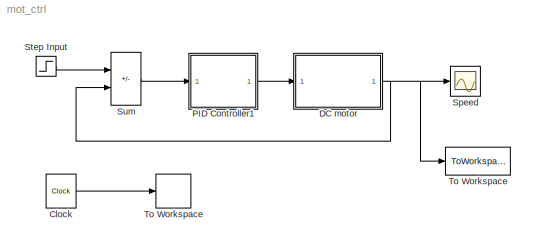
MODEL mot_ctrl
KIND model
CONFIG AbsTol = 1e-3
CONFIG FixedStep = auto
CONFIG MaxStep = 1
CONFIG MinStep = auto
CONFIG RelTol = 1e-3
CONFIG Solver = ode45
CONFIG SolverMode = SingleTasking
CONFIG StartTime = 0.0
CONFIG StopTime = 2
BLOCK [Clock] Clock
  Decimation = 10
  DisplayTime = off
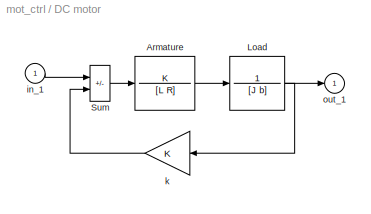
BLOCK [SubSystem] DC motor
  MaskDisplay = disp('DC motor')
  MaskIconFrame = on
  MaskIconOpaque = on
  MaskIconRotate = none
  MaskIconUnits = autoscale
  Ports = [1, 1]
  RTWFcnNameOpts = Auto
  RTWFileNameOpts = Auto
  RTWSystemCode = Auto
  ShowPortLabels = off
  TreatAsAtomicUnit = off
BLOCK [Gain] DC motor/ k 
  Gain = K
  Multiplication = Element-wise(K.*u)
  SaturateOnIntegerOverflow = on
BLOCK [TransferFcn] DC motor/Armature
  AbsoluteTolerance = auto
  Denominator = [L R]
  Numerator = K
  Realization = auto
BLOCK [TransferFcn] DC motor/Load
  AbsoluteTolerance = auto
  Denominator = [J b]
  Numerator = 1
  Realization = auto
BLOCK [Sum] DC motor/Sum
  IconShape = rectangular
  Inputs = +-
  Ports = [2, 1]
  SaturateOnIntegerOverflow = on
BLOCK [Inport] DC motor/in_1
  Interpolate = on
  LatchInput = off
  Port = 1
BLOCK [Outport] DC motor/out_1
  InitialOutput = 0
  OutputWhenDisabled = held
  Port = 1
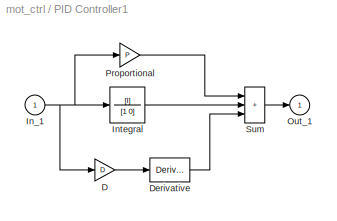
BLOCK [SubSystem] PID Controller1
  MaskCallbackString = ||
  MaskDescription = Enter expressions for proportional, integral, and derivative terms.\nP+I/s+Ds
  MaskDisplay = disp('PID')
  MaskEnableString = on,on,on
  MaskHelp = This block implements a PID controller where parameters are entered for the Proportional, Integral and Derivative terms. Unmask this block to see how it works. The derivative term is implemented using a true derivative block.
  MaskIconFrame = on
  MaskIconOpaque = on
  MaskIconRotate = none
  MaskIconUnits = autoscale
  MaskInitialization = P=@1; I=@2; D=@3;
  MaskPromptString = Proportional:|Integral|Derivative:
  MaskStyleString = edit,edit,edit
  MaskToolTipString = on,on,on
  MaskTunableValueString = on,on,on
  MaskType = PID Controller
  MaskValueString = 100|100|10
  MaskVariableAliases = ,,
  MaskVisibilityString = on,on,on
  Ports = [1, 1]
  RTWFcnNameOpts = Auto
  RTWFileNameOpts = Auto
  RTWSystemCode = Auto
  ShowPortLabels = off
  TreatAsAtomicUnit = off
BLOCK [Gain] PID Controller1/D
  Gain = D
  Multiplication = Element-wise(K.*u)
  SaturateOnIntegerOverflow = on
BLOCK [Derivative] PID Controller1/Derivative
BLOCK [Inport] PID Controller1/In_1
  Interpolate = on
  LatchInput = off
  Port = 1
BLOCK [TransferFcn] PID Controller1/Integral
  AbsoluteTolerance = auto
  Denominator = [1 0]
  Numerator = [I]
  Realization = auto
BLOCK [Outport] PID Controller1/Out_1
  InitialOutput = 0
  OutputWhenDisabled = held
  Port = 1
BLOCK [Gain] PID Controller1/Proportional
  Gain = P
  Multiplication = Element-wise(K.*u)
  SaturateOnIntegerOverflow = on
BLOCK [Sum] PID Controller1/Sum
  IconShape = rectangular
  Inputs = +++
  Ports = [3, 1]
  SaturateOnIntegerOverflow = on
BLOCK [Scope] Speed
  DataFormat = Array
  Decimation = 1
  Floating = off
  Grid = on
  LimitDataPoints = on
  MaxDataPoints = 5000
  NumInputPorts = 1
  Ports = [1]
  SampleInput = off
  SampleTime = 0
  SaveName = ScopeData
  SaveToWorkspace = off
  TickLabels = on
  TimeRange = auto
  YMax = 1.5
  YMin = 0
  ZoomMode = on
BLOCK [Step] Step Input
  After = 1
  Before = 0
  SampleTime = -1
  Time = 0
  VectorParams1D = on
BLOCK [Sum] Sum
  IconShape = rectangular
  Inputs = +-
  Ports = [2, 1]
  SaturateOnIntegerOverflow = on
BLOCK [ToWorkspace] To Workspace
  Decimation = 1
  MaxDataPoints = 1000
  SampleTime = 0
  SaveFormat = Array
  VariableName = omega
BLOCK [ToWorkspace] To Workspace  
  Decimation = 1
  MaxDataPoints = 1000
  SampleTime = 0
  SaveFormat = Array
  VariableName = t
LINE Clock:1 -> To Workspace  :1
LINE DC motor/ k :1 -> DC motor/Sum:2
LINE DC motor/Armature:1 -> DC motor/Load:1
NET DC motor/Load:1 -> DC motor/ k :1, DC motor/out_1:1
LINE DC motor/Sum:1 -> DC motor/Armature:1
LINE DC motor/in_1:1 -> DC motor/Sum:1
NET DC motor:1 -> Speed:1, Sum:2, To Workspace:1
LINE PID Controller1/D:1 -> PID Controller1/Derivative:1
LINE PID Controller1/Derivative:1 -> PID Controller1/Sum:3
NET PID Controller1/In_1:1 -> PID Controller1/D:1, PID Controller1/Integral:1, PID Controller1/Proportional:1
LINE PID Controller1/Integral:1 -> PID Controller1/Sum:2
LINE PID Controller1/Proportional:1 -> PID Controller1/Sum:1
LINE PID Controller1/Sum:1 -> PID Controller1/Out_1:1
LINE PID Controller1:1 -> DC motor:1
LINE Step Input:1 -> Sum:1
LINE Sum:1 -> PID Controller1:1
note: NET lines group one-source signal fan-out (src -> all destinations, sorted); 1:1 wires keep LINE
